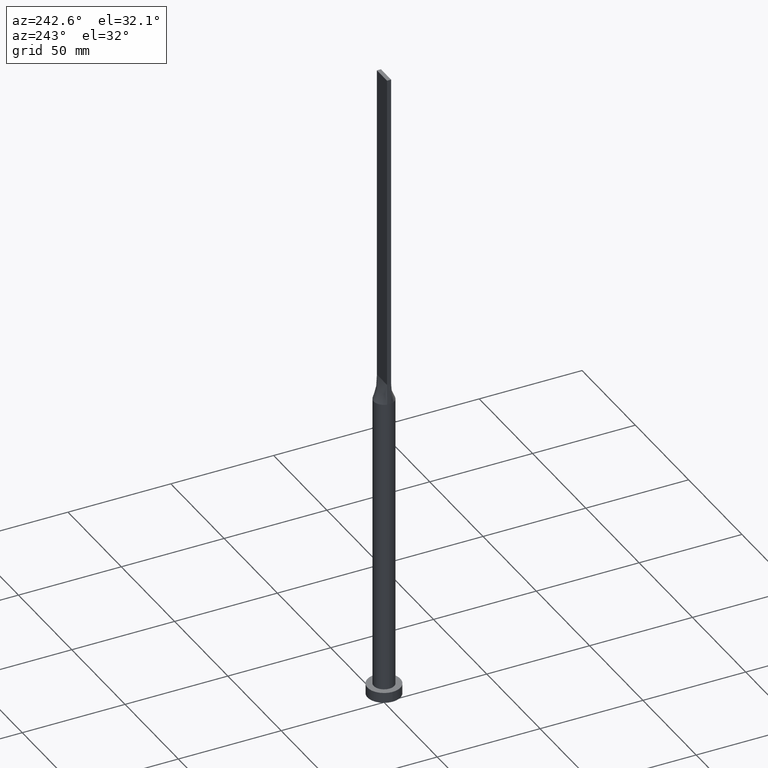
[diagram: clean part render]
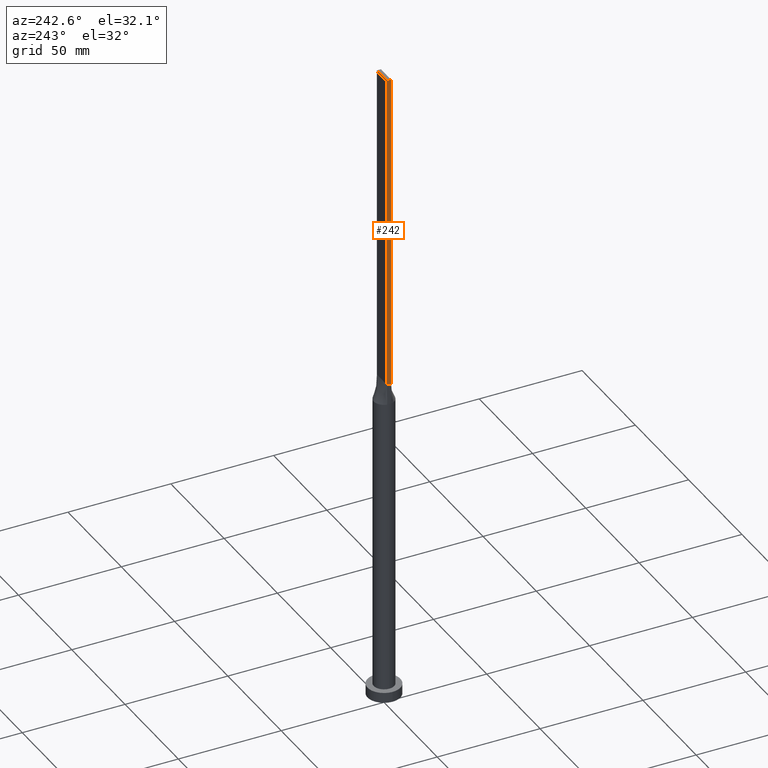
[diagram: same view with one face highlighted and labeled with its STEP entity id]
A machine part, auxiliary view. The second image highlights one B-rep face of the part: STEP entity #242.
In plain terms, the highlighted planar face has unit normal (1, 0, -0).
Its self-contained STEP definition (entity closure, byte-faithful):
#4 = VECTOR ( 'NONE', #522, 1000.000000000000000 ) ;
#5 = VERTEX_POINT ( 'NONE', #431 ) ;
#12 = CARTESIAN_POINT ( 'NONE',  ( -4.750000000000000000, 1.000000000000000000, 315.0000000000000000 ) ) ;
#22 = EDGE_CURVE ( 'NONE', #79, #142, #74, .T. ) ;
#45 = CARTESIAN_POINT ( 'NONE',  ( -4.750000000000000000, 1.000000000000000000, 315.0000000000000000 ) ) ;
#49 = ORIENTED_EDGE ( 'NONE', *, *, #411, .T. ) ;
#57 = CARTESIAN_POINT ( 'NONE',  ( -4.750000000000000000, 1.000000000000000000, 315.0000000000000000 ) ) ;
#74 = LINE ( 'NONE', #12, #4 ) ;
#79 = VERTEX_POINT ( 'NONE', #340 ) ;
#125 = DIRECTION ( 'NONE',  ( 1.000000000000000000, 0.000000000000000000, -0.000000000000000000 ) ) ;
#128 = VERTEX_POINT ( 'NONE', #379 ) ;
#135 = DIRECTION ( 'NONE',  ( -0.000000000000000000, 0.000000000000000000, -1.000000000000000000 ) ) ;
#142 = VERTEX_POINT ( 'NONE', #209 ) ;
#147 = DIRECTION ( 'NONE',  ( -0.000000000000000000, -0.000000000000000000, -1.000000000000000000 ) ) ;
#148 = DIRECTION ( 'NONE',  ( 0.000000000000000000, -1.000000000000000000, 0.000000000000000000 ) ) ;
#154 = AXIS2_PLACEMENT_3D ( 'NONE', #45, #125, #135 ) ;
#181 = CARTESIAN_POINT ( 'NONE',  ( -4.750000000000000000, -0.9999999999999991118, 315.0000000000000000 ) ) ;
#188 = ORIENTED_EDGE ( 'NONE', *, *, #22, .F. ) ;
#209 = CARTESIAN_POINT ( 'NONE',  ( -4.750000000000000000, -0.9999999999999991118, 315.0000000000000000 ) ) ;
#222 = ORIENTED_EDGE ( 'NONE', *, *, #343, .T. ) ;
#241 = DIRECTION ( 'NONE',  ( -0.000000000000000000, -0.000000000000000000, -1.000000000000000000 ) ) ;
#242 = ADVANCED_FACE ( 'NONE', ( #593 ), #598, .F. ) ;
#286 = LINE ( 'NONE', #57, #557 ) ;
#290 = LINE ( 'NONE', #181, #471 ) ;
#340 = CARTESIAN_POINT ( 'NONE',  ( -4.750000000000000000, 1.000000000000000000, 315.0000000000000000 ) ) ;
#343 = EDGE_CURVE ( 'NONE', #79, #5, #286, .T. ) ;
#374 = EDGE_CURVE ( 'NONE', #142, #128, #290, .T. ) ;
#379 = CARTESIAN_POINT ( 'NONE',  ( -4.750000000000000000, -0.9999999999999991118, 160.0000000000000000 ) ) ;
#411 = EDGE_CURVE ( 'NONE', #5, #128, #414, .T. ) ;
#414 = LINE ( 'NONE', #461, #449 ) ;
#431 = CARTESIAN_POINT ( 'NONE',  ( -4.750000000000000000, 1.000000000000000000, 160.0000000000000000 ) ) ;
#449 = VECTOR ( 'NONE', #148, 1000.000000000000000 ) ;
#461 = CARTESIAN_POINT ( 'NONE',  ( -4.750000000000000000, 1.000000000000000000, 160.0000000000000000 ) ) ;
#471 = VECTOR ( 'NONE', #147, 1000.000000000000000 ) ;
#483 = EDGE_LOOP ( 'NONE', ( #49, #551, #188, #222 ) ) ;
#522 = DIRECTION ( 'NONE',  ( 0.000000000000000000, -1.000000000000000000, 0.000000000000000000 ) ) ;
#551 = ORIENTED_EDGE ( 'NONE', *, *, #374, .F. ) ;
#557 = VECTOR ( 'NONE', #241, 1000.000000000000000 ) ;
#593 = FACE_OUTER_BOUND ( 'NONE', #483, .T. ) ;
#598 = PLANE ( 'NONE',  #154 ) ;